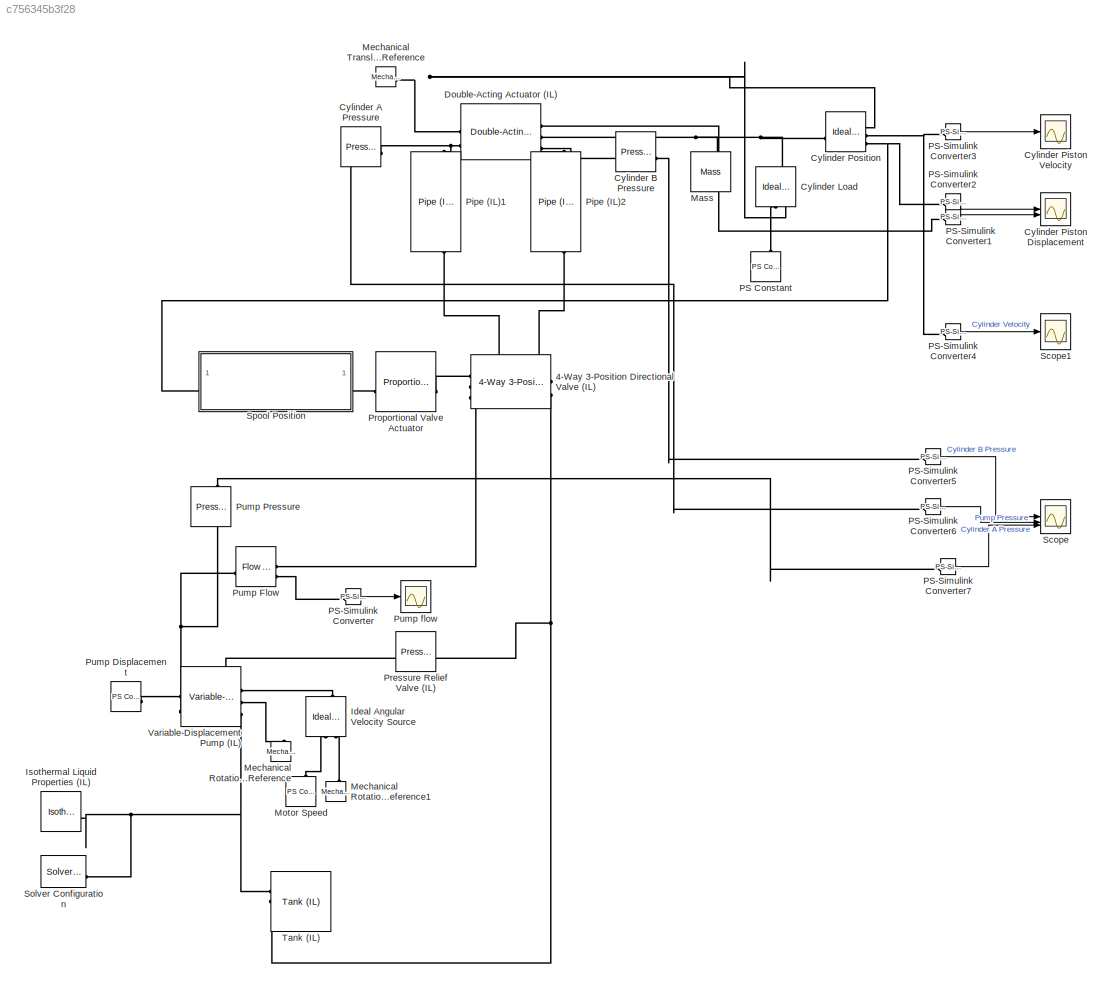
MODEL slx_c756345b3f28
KIND model
CONFIG AbsTol = 1e-3
CONFIG EnableMultiTasking = off
CONFIG FixedStep = auto
CONFIG MaxStep = auto
CONFIG MinStep = auto
CONFIG RelTol = 1e-3
CONFIG SampleTimeConstraint = Unconstrained
CONFIG SolverName = VariableStepAuto
CONFIG StartTime = 0.0
CONFIG StopTime = 100
BLOCK [Reference] 4-Way 3-Position Directional Valve (IL)  REF=SimscapeFluids_lib/Isothermal Liquid/Valves & Orifices/Directional Control
Valves/4-Way 3-Position
Directional Valve
(IL)
  SourceBlock = SimscapeFluids_lib/Isothermal Liquid/Valves & Orifices/Directional Control\nValves/4-Way 3-Position\nDirectional Valve\n(IL)
  SourceType = 4-Way 3-Position\nDirectional Valve\n(IL)
BLOCK [Reference] Cylinder A Pressure  REF=fl_lib/Isothermal Liquid/Sensors/Pressure Sensor (IL)
  SourceBlock = fl_lib/Isothermal Liquid/Sensors/Pressure Sensor (IL)
  SourceType = Pressure Sensor (IL)
BLOCK [Reference] Cylinder B Pressure  REF=fl_lib/Isothermal Liquid/Sensors/Pressure Sensor (IL)
  SourceBlock = fl_lib/Isothermal Liquid/Sensors/Pressure Sensor (IL)
  SourceType = Pressure Sensor (IL)
BLOCK [Reference] Cylinder Load  REF=fl_lib/Mechanical/Mechanical Sources/Ideal Force Source
  NameLocation = right
  SourceBlock = fl_lib/Mechanical/Mechanical Sources/Ideal Force Source
  SourceType = Ideal Force Source
BLOCK [Scope] Cylinder Piston Displacement
  Floating = off
  NumInputPorts = 2
  ScopeSpecificationString = Simulink.scopes.TimeScopeBlockCfg('CurrentConfiguration', extmgr.ConfigurationSet(extmgr.Configuration('Core','General UI',true),extmgr.Configuration('Core','Source UI',true),extmgr.Configuration('Sources','WiredSimulink',true,'DataLoggingVariableName','ScopeData1'),extmgr.Configuration('Visuals','Time Domain',true,'SerializedDisplays',{struct('MinYLimReal','-0.83141','MaxYLimReal','8.16557','YLab...<+1406ch>
BLOCK [Scope] Cylinder Piston Velocity
  Floating = off
  NumInputPorts = 1
  ScopeSpecificationString = Simulink.scopes.TimeScopeBlockCfg('CurrentConfiguration', extmgr.ConfigurationSet(extmgr.Configuration('Core','General UI',true),extmgr.Configuration('Core','Source UI',true),extmgr.Configuration('Sources','WiredSimulink',true,'DataLoggingVariableName','ScopeData2'),extmgr.Configuration('Visuals','Time Domain',true,'SerializedDisplays',{struct('MinYLimReal','-1.17735','MaxYLimReal','0.76466','YLab...<+1381ch>
BLOCK [Reference] Cylinder Position  REF=fl_lib/Mechanical/Mechanical Sensors/Ideal Translational
Motion Sensor
  SourceBlock = fl_lib/Mechanical/Mechanical Sensors/Ideal Translational\nMotion Sensor
  SourceType = Ideal Translational\nMotion Sensor
BLOCK [Reference] Double-Acting Actuator (IL)  REF=SimscapeFluids_lib/Isothermal Liquid/Actuators/Double-Acting
Actuator (IL)
  SourceBlock = SimscapeFluids_lib/Isothermal Liquid/Actuators/Double-Acting\nActuator (IL)
  SourceType = Double-Acting\nActuator (IL)
BLOCK [Reference] Ideal Angular Velocity Source  REF=fl_lib/Mechanical/Mechanical Sources/Ideal Angular
Velocity Source
  NameLocation = right
  SourceBlock = fl_lib/Mechanical/Mechanical Sources/Ideal Angular\nVelocity Source
  SourceType = Ideal Angular\nVelocity Source
BLOCK [Reference] Isothermal Liquid Properties (IL)  REF=fl_lib/Isothermal Liquid/Utilities/Isothermal Liquid
Properties (IL)
  SourceBlock = fl_lib/Isothermal Liquid/Utilities/Isothermal Liquid\nProperties (IL)
  SourceType = Isothermal Liquid\nProperties (IL)
BLOCK [Reference] Mass  REF=fl_lib/Mechanical/Translational
Elements/Mass
  NameLocation = right
  SourceBlock = fl_lib/Mechanical/Translational\nElements/Mass
  SourceType = Mass
BLOCK [Reference] Mechanical Rotational Reference  REF=fl_lib/Mechanical/Rotational Elements/Mechanical
Rotational Reference
  NameLocation = right
  SourceBlock = fl_lib/Mechanical/Rotational Elements/Mechanical\nRotational Reference
  SourceType = Mechanical\nRotational Reference
BLOCK [Reference] Mechanical Rotational Reference1  REF=fl_lib/Mechanical/Rotational Elements/Mechanical
Rotational Reference
  NameLocation = right
  SourceBlock = fl_lib/Mechanical/Rotational Elements/Mechanical\nRotational Reference
  SourceType = Mechanical\nRotational Reference
BLOCK [Reference] Mechanical Translational Reference  REF=fl_lib/Mechanical/Translational
Elements/Mechanical
Translational
Reference
  SourceBlock = fl_lib/Mechanical/Translational\nElements/Mechanical\nTranslational\nReference
  SourceType = Mechanical\nTranslational\nReference
BLOCK [Reference] Motor Speed  REF=fl_lib/Physical Signals/Sources/PS Constant
  SourceBlock = fl_lib/Physical Signals/Sources/PS Constant
  SourceType = PS Constant
BLOCK [Reference] PS Constant  REF=fl_lib/Physical Signals/Sources/PS Constant
  SourceBlock = fl_lib/Physical Signals/Sources/PS Constant
  SourceType = PS Constant
BLOCK [Reference] PS-Simulink Converter  REF=nesl_utility/PS-Simulink
Converter
  SourceBlock = nesl_utility/PS-Simulink\nConverter
  SourceType = PS-Simulink\nConverter
BLOCK [Reference] PS-Simulink Converter1  REF=nesl_utility/PS-Simulink
Converter
  SourceBlock = nesl_utility/PS-Simulink\nConverter
  SourceType = PS-Simulink\nConverter
BLOCK [Reference] PS-Simulink Converter2  REF=nesl_utility/PS-Simulink
Converter
  SourceBlock = nesl_utility/PS-Simulink\nConverter
  SourceType = PS-Simulink\nConverter
BLOCK [Reference] PS-Simulink Converter3  REF=nesl_utility/PS-Simulink
Converter
  SourceBlock = nesl_utility/PS-Simulink\nConverter
  SourceType = PS-Simulink\nConverter
BLOCK [Reference] PS-Simulink Converter4  REF=nesl_utility/PS-Simulink
Converter
  SourceBlock = nesl_utility/PS-Simulink\nConverter
  SourceType = PS-Simulink\nConverter
BLOCK [Reference] PS-Simulink Converter5  REF=nesl_utility/PS-Simulink
Converter
  SourceBlock = nesl_utility/PS-Simulink\nConverter
  SourceType = PS-Simulink\nConverter
BLOCK [Reference] PS-Simulink Converter6  REF=nesl_utility/PS-Simulink
Converter
  SourceBlock = nesl_utility/PS-Simulink\nConverter
  SourceType = PS-Simulink\nConverter
BLOCK [Reference] PS-Simulink Converter7  REF=nesl_utility/PS-Simulink
Converter
  SourceBlock = nesl_utility/PS-Simulink\nConverter
  SourceType = PS-Simulink\nConverter
BLOCK [Reference] Pipe (IL)1  REF=SimscapeFluids_lib/Isothermal Liquid/Pipes & Fittings/Pipe (IL)
  NameLocation = left
  SourceBlock = SimscapeFluids_lib/Isothermal Liquid/Pipes & Fittings/Pipe (IL)
  SourceType = Pipe (IL)
BLOCK [Reference] Pipe (IL)2  REF=SimscapeFluids_lib/Isothermal Liquid/Pipes & Fittings/Pipe (IL)
  NameLocation = left
  SourceBlock = SimscapeFluids_lib/Isothermal Liquid/Pipes & Fittings/Pipe (IL)
  SourceType = Pipe (IL)
BLOCK [Reference] Pressure Relief Valve (IL)  REF=SimscapeFluids_lib/Isothermal Liquid/Valves & Orifices/Pressure Control
Valves/Pressure Relief
Valve (IL)
  SourceBlock = SimscapeFluids_lib/Isothermal Liquid/Valves & Orifices/Pressure Control\nValves/Pressure Relief\nValve (IL)
  SourceType = Pressure Relief\nValve (IL)
BLOCK [Reference] Proportional Valve Actuator  REF=SimscapeFluids_lib/Valve Actuators/Proportional Valve
Actuator
  SourceBlock = SimscapeFluids_lib/Valve Actuators/Proportional Valve\nActuator
  SourceType = Proportional Valve\nActuator
BLOCK [Reference] Pump Displacement  REF=fl_lib/Physical Signals/Sources/PS Constant
  SourceBlock = fl_lib/Physical Signals/Sources/PS Constant
  SourceType = PS Constant
BLOCK [Reference] Pump Flow  REF=fl_lib/Isothermal Liquid/Sensors/Flow Rate Sensor
(IL)
  SourceBlock = fl_lib/Isothermal Liquid/Sensors/Flow Rate Sensor\n(IL)
  SourceType = Flow Rate Sensor\n(IL)
BLOCK [Reference] Pump Pressure  REF=fl_lib/Isothermal Liquid/Sensors/Pressure Sensor (IL)
  NameLocation = top
  SourceBlock = fl_lib/Isothermal Liquid/Sensors/Pressure Sensor (IL)
  SourceType = Pressure Sensor (IL)
BLOCK [Scope] Pump flow
  Floating = off
  NumInputPorts = 1
  ScopeSpecificationString = Simulink.scopes.TimeScopeBlockCfg('CurrentConfiguration', extmgr.ConfigurationSet(extmgr.Configuration('Core','General UI',true),extmgr.Configuration('Core','Source UI',true),extmgr.Configuration('Sources','WiredSimulink',true),extmgr.Configuration('Visuals','Time Domain',true,'SerializedDisplays',{struct('MinYLimReal','-0.00009','MaxYLimReal','0.00083','YLabelReal','','MinYLimMag','0.00000','MaxY...<+1341ch>
BLOCK [Scope] Scope
  Floating = off
  NumInputPorts = 3
  ScopeSpecificationString = Simulink.scopes.TimeScopeBlockCfg('CurrentConfiguration', extmgr.ConfigurationSet(extmgr.Configuration('Core','General UI',true),extmgr.Configuration('Core','Source UI',true),extmgr.Configuration('Sources','WiredSimulink',true,'DataLoggingVariableName','ScopeData2'),extmgr.Configuration('Visuals','Time Domain',true,'SerializedDisplays',{struct('MinYLimReal','-3561688.81233','MaxYLimReal','31674213...<+1519ch>
BLOCK [Scope] Scope1
  Floating = off
  NumInputPorts = 1
  ScopeSpecificationString = Simulink.scopes.TimeScopeBlockCfg('CurrentConfiguration', extmgr.ConfigurationSet(extmgr.Configuration('Core','General UI',true),extmgr.Configuration('Core','Source UI',true),extmgr.Configuration('Sources','WiredSimulink',true,'DataLoggingVariableName','ScopeData3'),extmgr.Configuration('Visuals','Time Domain',true,'SerializedDisplays',{struct('MinYLimReal','-1.17735','MaxYLimReal','0.76466','YLab...<+1428ch>
BLOCK [Reference] Solver Configuration  REF=nesl_utility/Solver
Configuration
  SourceBlock = nesl_utility/Solver\nConfiguration
  SourceType = Solver\nConfiguration
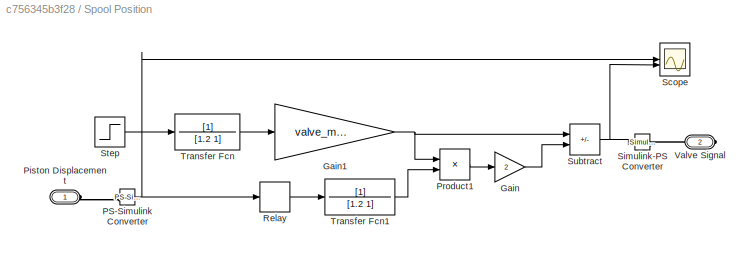
BLOCK [SubSystem] Spool Position
BLOCK [Gain] Spool Position/Gain
  Gain = 2
BLOCK [Gain] Spool Position/Gain1
  Gain = valve_max_voltage
BLOCK [Reference] Spool Position/PS-Simulink Converter  REF=nesl_utility/PS-Simulink
Converter
  SourceBlock = nesl_utility/PS-Simulink\nConverter
  SourceType = PS-Simulink\nConverter
BLOCK [PMIOPort] Spool Position/Piston Displacement
  Side = Left
BLOCK [Product] Spool Position/Product1
BLOCK [Relay] Spool Position/Relay
  OffSwitchValue = relay_switch_off_point
  OnSwitchValue = relay_switch_on_point
BLOCK [Scope] Spool Position/Scope
  Floating = off
  NumInputPorts = 2
  ScopeSpecificationString = Simulink.scopes.TimeScopeBlockCfg('CurrentConfiguration', extmgr.ConfigurationSet(extmgr.Configuration('Core','General UI',true),extmgr.Configuration('Core','Source UI',true),extmgr.Configuration('Sources','WiredSimulink',true,'DataLoggingVariableName','ScopeData1'),extmgr.Configuration('Visuals','Time Domain',true,'SerializedDisplays',{struct('MinYLimReal','-12.48163','MaxYLimReal','12.4976','YLa...<+1467ch>
BLOCK [Reference] Spool Position/Simulink-PS Converter  REF=nesl_utility/Simulink-PS
Converter
  SourceBlock = nesl_utility/Simulink-PS\nConverter
  SourceType = Simulink-PS\nConverter
BLOCK [Step] Spool Position/Step
  SampleTime = 0
BLOCK [Sum] Spool Position/Subtract
  IconShape = rectangular
  Inputs = +-
BLOCK [TransferFcn] Spool Position/Transfer Fcn
  Denominator = [1.2 1]
BLOCK [TransferFcn] Spool Position/Transfer Fcn1
  Denominator = [1.2 1]
BLOCK [PMIOPort] Spool Position/Valve Signal
  Port = 2
  Side = Right
BLOCK [Reference] Tank (IL)  REF=SimscapeFluids_lib/Isothermal Liquid/Tanks & Accumulators/Tank (IL)
  SourceBlock = SimscapeFluids_lib/Isothermal Liquid/Tanks & Accumulators/Tank (IL)
  SourceType = Tank (IL)
BLOCK [Reference] Variable-Displacement Pump (IL)  REF=SimscapeFluids_lib/Isothermal Liquid/Pumps & Motors/Variable-Displacement
Pump (IL)
  SourceBlock = SimscapeFluids_lib/Isothermal Liquid/Pumps & Motors/Variable-Displacement\nPump (IL)
  SourceType = Variable-Displacement\nPump (IL)
LINE PS-Simulink Converter1:1 -> Cylinder Piston Displacement:2
LINE PS-Simulink Converter2:1 -> Cylinder Piston Displacement:1
LINE PS-Simulink Converter3:1 -> Cylinder Piston Velocity:1
LINE PS-Simulink Converter4:1 -> Scope1:1
LINE PS-Simulink Converter5:1 -> Scope:1
LINE PS-Simulink Converter6:1 -> Scope:2
LINE PS-Simulink Converter7:1 -> Scope:3
LINE PS-Simulink Converter:1 -> Pump flow:1
NET Spool Position/Gain1:1 -> Spool Position/Product1:1, Spool Position/Subtract:1
LINE Spool Position/Gain:1 -> Spool Position/Subtract:2
NET Spool Position/PS-Simulink Converter:1 -> Spool Position/Relay:1, Spool Position/Scope:1
LINE Spool Position/Product1:1 -> Spool Position/Gain:1
LINE Spool Position/Relay:1 -> Spool Position/Transfer Fcn1:1
LINE Spool Position/Step:1 -> Spool Position/Transfer Fcn:1
NET Spool Position/Subtract:1 -> Spool Position/Scope:2, Spool Position/Simulink-PS Converter:1
LINE Spool Position/Transfer Fcn1:1 -> Spool Position/Product1:2
LINE Spool Position/Transfer Fcn:1 -> Spool Position/Gain1:1
PLINE 4-Way 3-Position Directional Valve (IL):LConn1 -- Proportional Valve Actuator:RConn1
PLINE 4-Way 3-Position Directional Valve (IL):LConn2 -- Pipe (IL)1:RConn1
PLINE 4-Way 3-Position Directional Valve (IL):LConn3 -- Pipe (IL)2:RConn1
PLINE 4-Way 3-Position Directional Valve (IL):RConn1 -- Pump Flow:RConn1
PNET net1: 4-Way 3-Position Directional Valve (IL):RConn2 -- Pressure Relief Valve (IL):RConn1 -- Tank (IL):LConn2
PNET net2: Cylinder A Pressure:LConn1 -- Double-Acting Actuator (IL):LConn2 -- Pipe (IL)1:LConn1
PLINE Cylinder A Pressure:RConn1 -- PS-Simulink Converter6:LConn1
PNET net3: Cylinder B Pressure:LConn1 -- Double-Acting Actuator (IL):RConn3 -- Pipe (IL)2:LConn1
PLINE Cylinder B Pressure:RConn1 -- PS-Simulink Converter5:LConn1
PNET net4: Cylinder Load:LConn1 -- Cylinder Position:LConn1 -- Double-Acting Actuator (IL):RConn2 -- Mass:LConn1
PLINE Cylinder Load:RConn1 -- PS Constant:RConn1
PNET net5: Cylinder Load:RConn2 -- Cylinder Position:RConn1 -- Double-Acting Actuator (IL):LConn1 -- Mechanical Translational Reference:LConn1
PNET net6: Cylinder Position:RConn2 -- PS-Simulink Converter3:LConn1 -- PS-Simulink Converter4:LConn1
PNET net7: Cylinder Position:RConn3 -- PS-Simulink Converter2:LConn1 -- Spool Position:LConn1
PLINE Double-Acting Actuator (IL):RConn1 -- PS-Simulink Converter1:LConn1
PLINE Ideal Angular Velocity Source:LConn1 -- Variable-Displacement Pump (IL):RConn1
PLINE Ideal Angular Velocity Source:RConn1 -- Motor Speed:RConn1
PLINE Ideal Angular Velocity Source:RConn2 -- Mechanical Rotational Reference1:LConn1
PNET net8: Isothermal Liquid Properties (IL):RConn1 -- Solver Configuration:RConn1 -- Tank (IL):LConn1 -- Variable-Displacement Pump (IL):RConn3
PLINE Mechanical Rotational Reference:LConn1 -- Variable-Displacement Pump (IL):RConn2
PLINE PS-Simulink Converter7:LConn1 -- Pump Pressure:RConn1
PLINE PS-Simulink Converter:LConn1 -- Pump Flow:RConn2
PNET net9: Pressure Relief Valve (IL):LConn1 -- Pump Flow:LConn1 -- Pump Pressure:LConn1 -- Variable-Displacement Pump (IL):LConn2
PLINE Proportional Valve Actuator:LConn1 -- Spool Position:RConn1
PLINE Pump Displacement:RConn1 -- Variable-Displacement Pump (IL):LConn1
PLINE Spool Position/PS-Simulink Converter:LConn1 -- Spool Position/Piston Displacement:RConn1
PLINE Spool Position/Simulink-PS Converter:RConn1 -- Spool Position/Valve Signal:RConn1
note: NET lines group one-source signal fan-out (src -> all destinations, sorted); 1:1 wires keep LINE; PNET lines group multi-terminal physical nets as a canonical sorted terminal list (undirected conserving connections); 2-terminal nets keep the pairwise PLINE form
